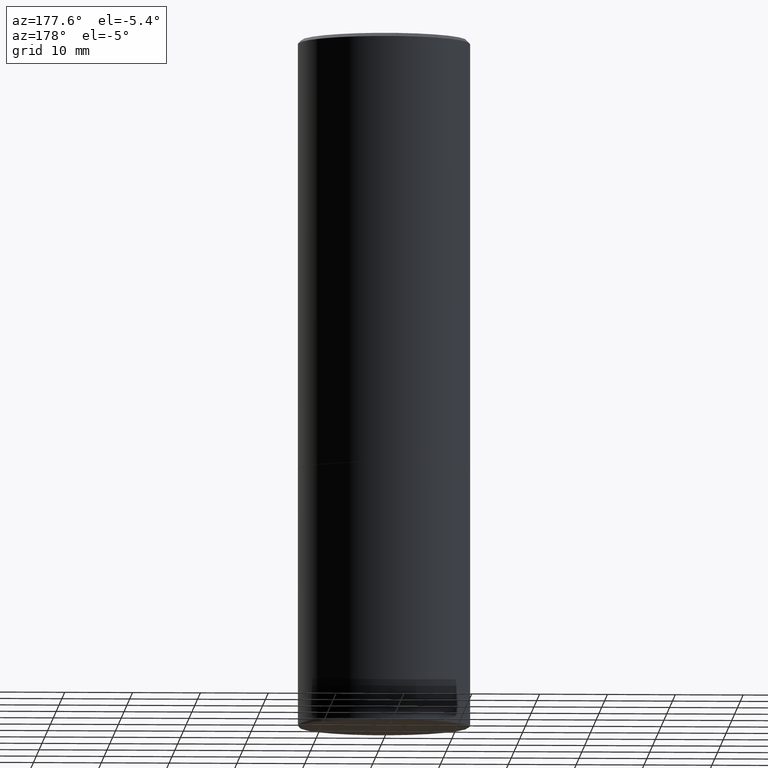
[diagram: clean part render]
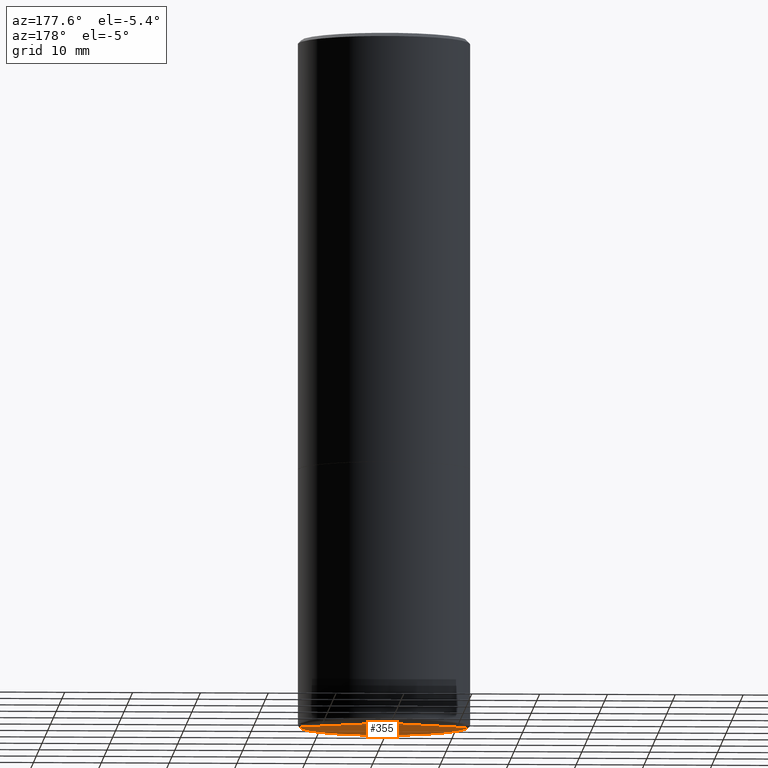
[diagram: same view with one face highlighted and labeled with its STEP entity id]
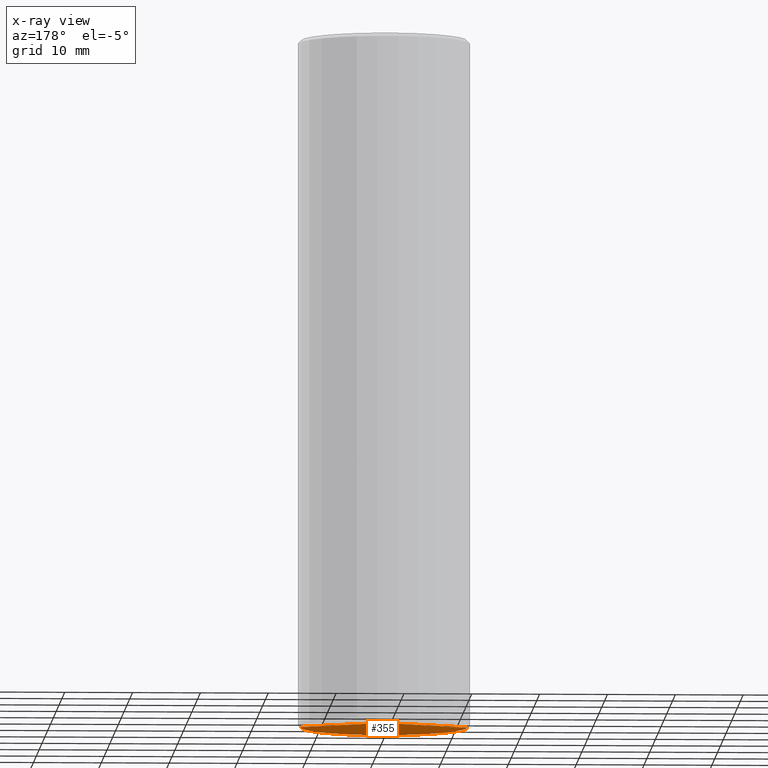
[diagram: x-ray of the same camera — body ghosted, the highlighted face saturated]
A machine part, auxiliary view. The second image highlights one B-rep face of the part: STEP entity #355.
The next image is the same camera in x-ray: the body ghosted, the highlighted face saturated — about 0% of this face is hidden behind the body in this view.
In plain terms, the highlighted conical surface has half-angle 87 deg.
Its self-contained STEP definition (entity closure, byte-faithful):
#4 = VERTEX_POINT ( 'NONE', #212 ) ;
#8 = CARTESIAN_POINT ( 'NONE',  ( -0.4842149606563559416, -1.044314117888104667E-14, -3.999999999999999556 ) ) ;
#17 = DIRECTION ( 'NONE',  ( -2.445468806185136597E-29, 3.491481338843145583E-15, 1.000000000000000000 ) ) ;
#27 = CARTESIAN_POINT ( 'NONE',  ( 9.076463885798192231E-18, -1.387732332254885124E-14, -3.974623369216377267 ) ) ;
#58 = FACE_OUTER_BOUND ( 'NONE', #217, .T. ) ;
#63 = CARTESIAN_POINT ( 'NONE',  ( -9.076463885603793485E-18, -1.387732332254885124E-14, -3.974623369216377267 ) ) ;
#82 = CONICAL_SURFACE ( 'NONE', #97, 751.2258538476515923, 1.518436449235072594 ) ;
#93 = EDGE_CURVE ( 'NONE', #4, #360, #365, .T. ) ;
#97 = AXIS2_PLACEMENT_3D ( 'NONE', #139, #241, #356 ) ;
#105 = VECTOR ( 'NONE', #335, 39.37007874015748854 ) ;
#112 = VECTOR ( 'NONE', #236, 39.37007874015748854 ) ;
#126 = CARTESIAN_POINT ( 'NONE',  ( 0.4842149606563559416, -1.734718035361323965E-14, -3.999999999999999556 ) ) ;
#139 = CARTESIAN_POINT ( 'NONE',  ( 1.059981169218608704E-27, -1.513372185525939570E-13, -43.34470210937386270 ) ) ;
#148 = ORIENTED_EDGE ( 'NONE', *, *, #93, .F. ) ;
#212 = CARTESIAN_POINT ( 'NONE',  ( 9.713479404897197644E-29, -1.388639978643455325E-14, -3.974623369216377267 ) ) ;
#217 = EDGE_LOOP ( 'NONE', ( #148, #395, #325 ) ) ;
#232 = CIRCLE ( 'NONE', #379, 0.4842149606563559416 ) ;
#236 = DIRECTION ( 'NONE',  ( -0.9986295347545742773, 6.790662755453663733E-15, -0.05233595624293798515 ) ) ;
#241 = DIRECTION ( 'NONE',  ( 2.445468806185136597E-29, -3.491481338843145583E-15, -1.000000000000000000 ) ) ;
#279 = DIRECTION ( 'NONE',  ( 1.000000000000000000, -6.982962677686267499E-15, 0.000000000000000000 ) ) ;
#288 = EDGE_CURVE ( 'NONE', #4, #347, #337, .T. ) ;
#325 = ORIENTED_EDGE ( 'NONE', *, *, #439, .F. ) ;
#326 = CARTESIAN_POINT ( 'NONE',  ( 9.781875224740545266E-29, -1.396592535537258075E-14, -3.999999999999999556 ) ) ;
#335 = DIRECTION ( 'NONE',  ( 0.9986295347545742773, -7.033825938272001856E-15, -0.05233595624293798515 ) ) ;
#337 = LINE ( 'NONE', #27, #105 ) ;
#347 = VERTEX_POINT ( 'NONE', #126 ) ;
#355 = ADVANCED_FACE ( 'NONE', ( #58 ), #82, .F. ) ;
#356 = DIRECTION ( 'NONE',  ( -1.000000000000000000, 6.982962677686267499E-15, 0.000000000000000000 ) ) ;
#360 = VERTEX_POINT ( 'NONE', #8 ) ;
#365 = LINE ( 'NONE', #63, #112 ) ;
#379 = AXIS2_PLACEMENT_3D ( 'NONE', #326, #17, #279 ) ;
#395 = ORIENTED_EDGE ( 'NONE', *, *, #288, .T. ) ;
#439 = EDGE_CURVE ( 'NONE', #360, #347, #232, .T. ) ;